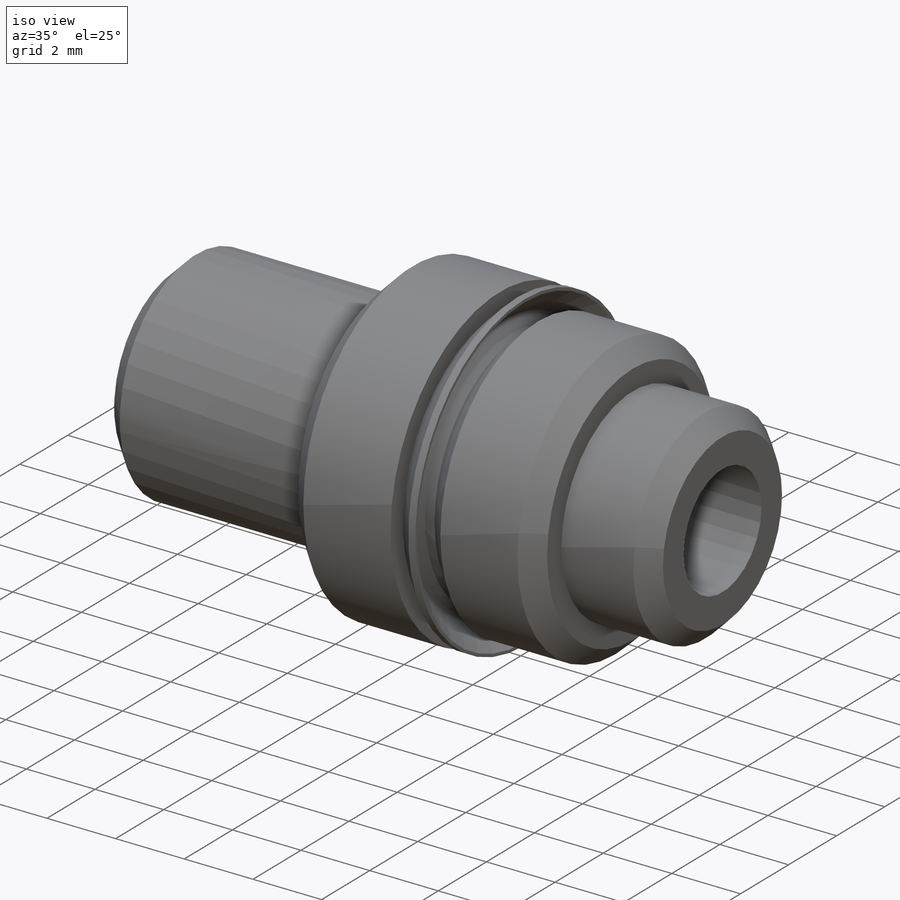
[diagram: iso view]
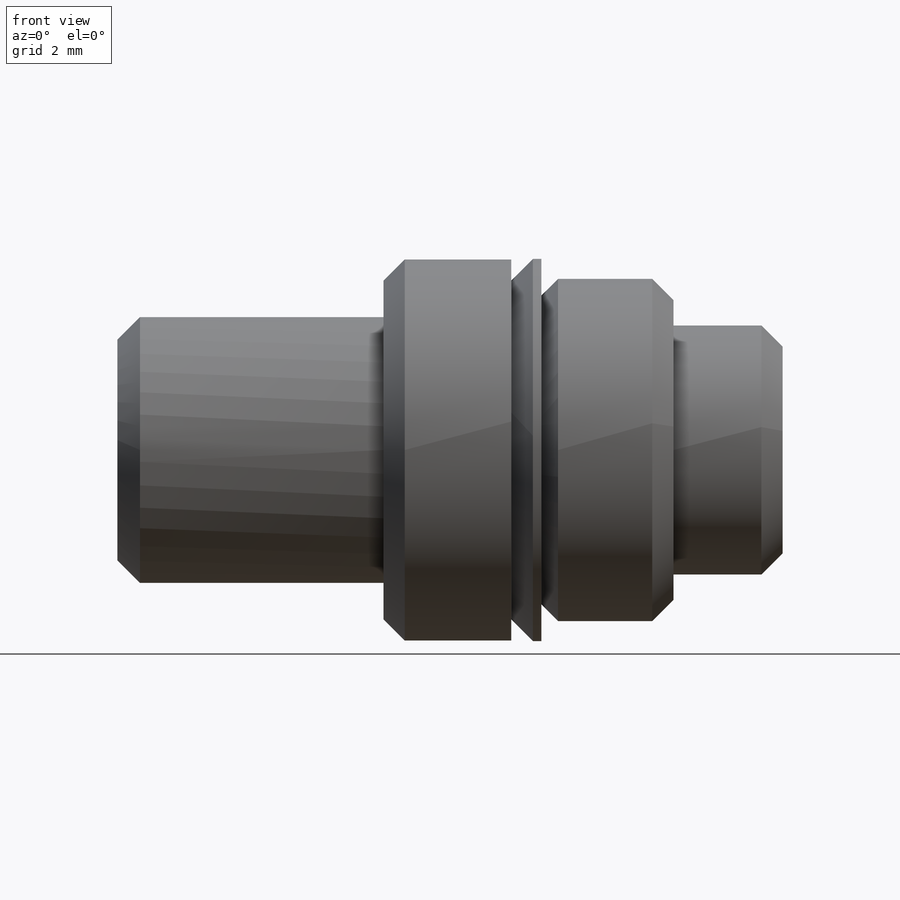
[diagram: front view]
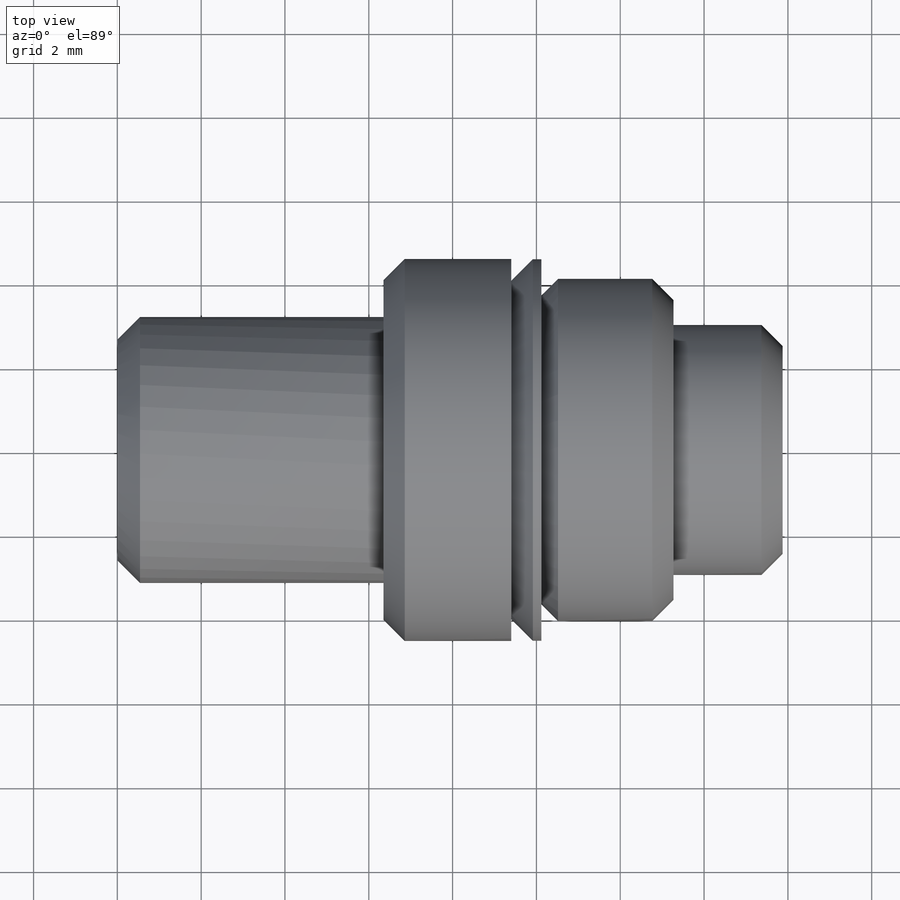
[diagram: top view]
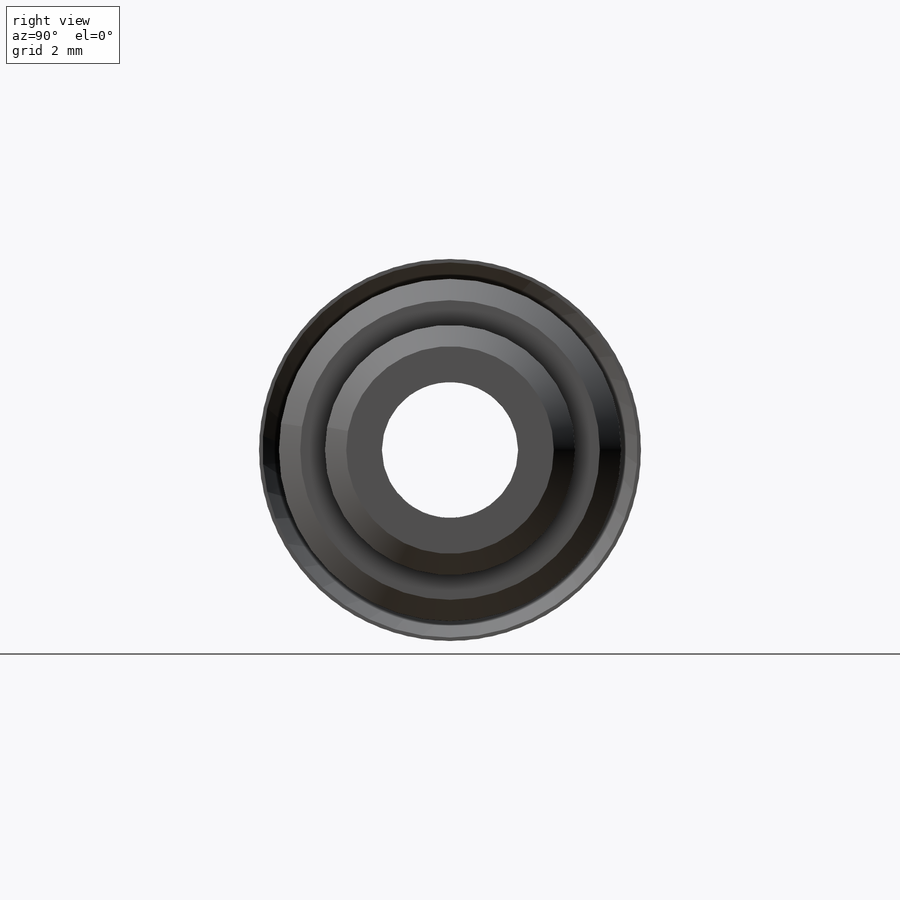
[diagram: right view]
SOLIDWORKS PART (.sldprt)
format: sldprt  version: not decoded by parser v0  size: 370,176 bytes
history: native  units: mm
features: plane x50, sketch x17, revolve x4, hole x2, material x1, thread x1 (+46 scaffold rows collapsed)
feature tree (121):
  scaffold x46  (default folders/planes/origin — collapsed)
  material  "Material <not specified>"
  sketch  "Sketch1"
  revolve  "Revolve1"  [1 undecoded]
  thread  "Cosmetic Thread1"  Diameter=6.35mm  [1 undecoded]
  sketch  "Sketch2"
  revolve  "Revolve2"  Angle=360deg
  sketch  "Sketch3"
  revolve  "Revolve3"  Angle=360deg
  hole  "Hole1"  Diameter=3.2512mm Depth=15.875mm
  sketch  "Sketch5"
  sketch  "Sketch4"  dims[Diameter=3.2512mm Depth=15.875mm C-Sink Angle=90.0deg C-Sink Diameter=4.0132mm]
  plane  "Plane1"  Offset=15.0876mm
  plane  "Plane2"  Offset=0mm
  plane  "Plane3"
  plane  "Plane4"  Offset=0mm
  plane  "Plane5"  Offset=9.398mm
  plane  "Plane6"  Offset=6.35mm
  plane  "Plane7"  Offset=9.398mm
  sketch  "Sketch6"
  revolve  "Revolve4"  Angle=360deg
  plane  "Plane8"  Offset=9.9568mm
  plane  "Plane9"  Offset=6.35mm
  plane  "Plane10"  Offset=6.35mm
  plane  "Plane11"  Offset=6.35mm
  plane  "Plane12"  Offset=12.7mm
  plane  "Plane13"  Offset=0mm
  plane  "Plane14"
  plane  "Plane15"
  plane  "Plane16"  Offset=0mm
  plane  "Plane17"  Offset=0mm
  hole  "Folder1___EndTag___"  [1 undecoded]
  plane  "rod_guide XY"
  plane  "rod_guide XZ"
  plane  "rod_guide YZ"
  sketch  "rod_guide"
  plane  "t1 XY"
  plane  "t1 XZ"
  plane  "t1 YZ"
  sketch  "t1"
  plane  "t111 XY"
  plane  "t111 XZ"
  plane  "t111 YZ"
  sketch  "t111"
  plane  "to_foot_bracket XY"
  plane  "to_foot_bracket XZ"
  plane  "to_foot_bracket YZ"
  sketch  "to_foot_bracket"
  plane  "to_nut XY"
  plane  "to_nut XZ"
  plane  "to_nut YZ"
  sketch  "to_nut"
  plane  "to_rod XY"
  plane  "to_rod XZ"
  plane  "to_rod YZ"
  sketch  "to_rod"
  plane  "to_screw XY"
  plane  "to_screw XZ"
  plane  "to_screw YZ"
  sketch  "to_screw"
  plane  "to_trunnion_brackets XY"
  plane  "to_trunnion_brackets XZ"
  plane  "to_trunnion_brackets YZ"
  sketch  "to_trunnion_brackets"
  plane  "to_trunnion_brackets1 XY"
  plane  "to_trunnion_brackets1 XZ"
  plane  "to_trunnion_brackets1 YZ"
  sketch  "to_trunnion_brackets1"
  plane  "to_trunnion_brackets2 XY"
  plane  "to_trunnion_brackets2 XZ"
  plane  "to_trunnion_brackets2 YZ"
  sketch  "to_trunnion_brackets2"
  plane  "to_tube XY"
  plane  "to_tube XZ"
  plane  "to_tube YZ"
  sketch  "to_tube"
decode coverage: 6 of 24 modeling features carry decoded parameters
note: 3 parameter values undecoded
note: suppression state not decoded; provenance and decode notes live in map.json
